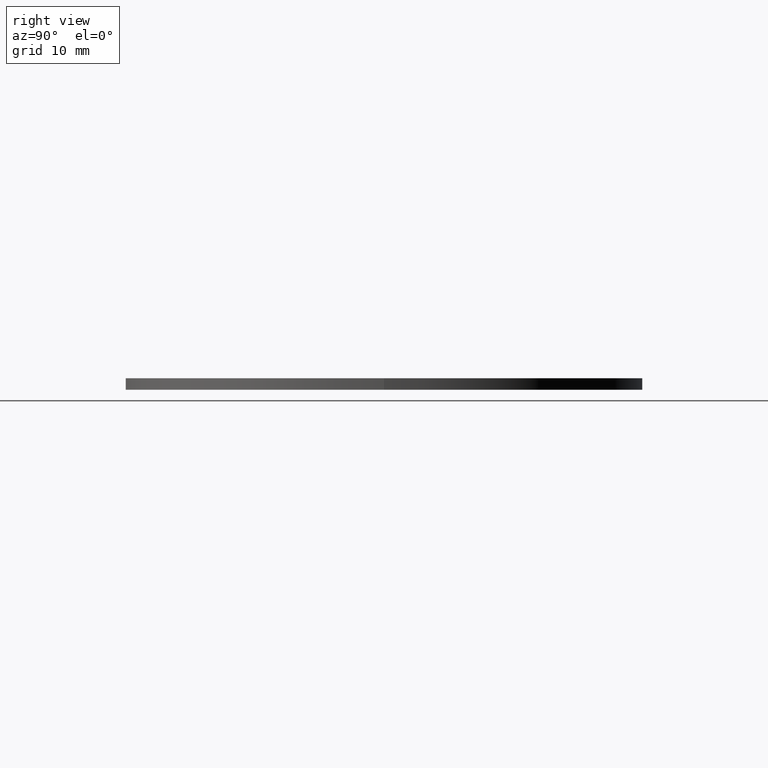
[diagram: clean part render]
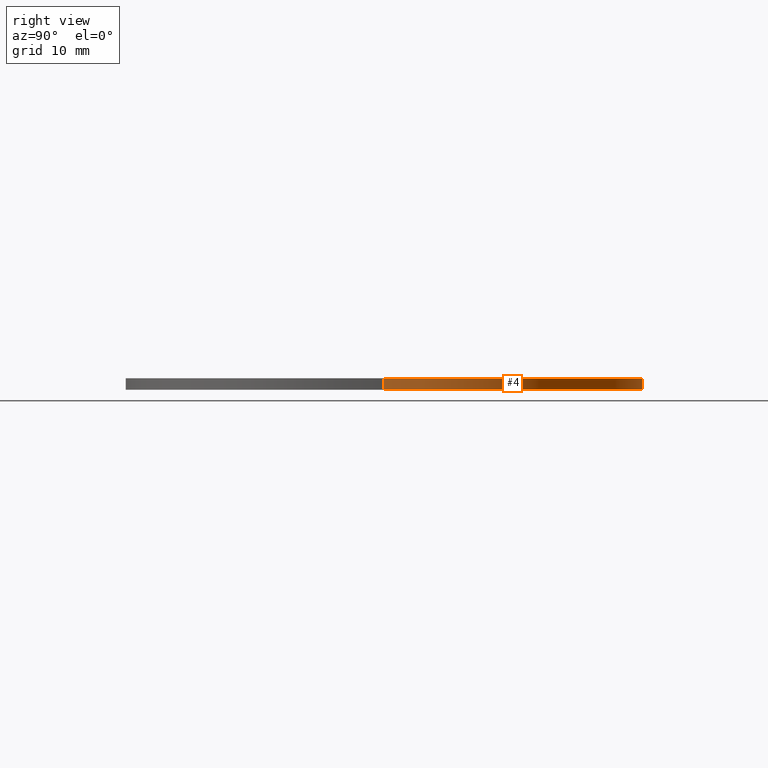
[diagram: same view with one face highlighted and labeled with its STEP entity id]
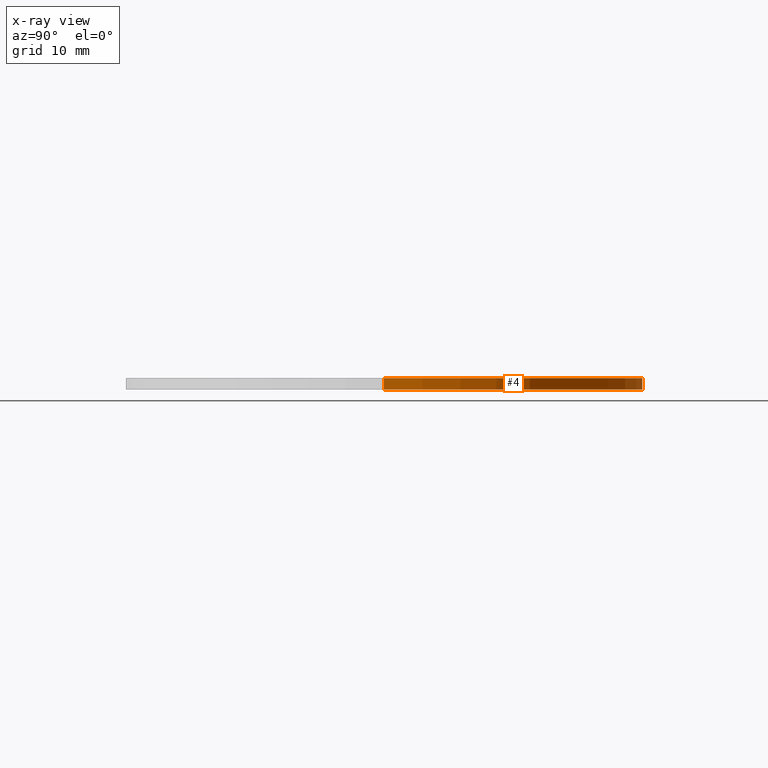
[diagram: x-ray of the same camera — body ghosted, the highlighted face saturated]
A machine part, right view. The second image highlights one B-rep face of the part: STEP entity #4.
The next image is the same camera in x-ray: the body ghosted, the highlighted face saturated — about 0% of this face is hidden behind the body in this view.
In plain terms, the highlighted cylindrical surface (partial cylindrical patch) has radius 25 mm, axis along (-0, -0, -1).
Its self-contained STEP definition (entity closure, byte-faithful):
#4 = ADVANCED_FACE ( 'NONE', ( #15 ), #6, .T. ) ;
#6 = CYLINDRICAL_SURFACE ( 'NONE', #142, 25.00000000000000000 ) ;
#11 = VERTEX_POINT ( 'NONE', #240 ) ;
#14 = LINE ( 'NONE', #158, #18 ) ;
#15 = FACE_OUTER_BOUND ( 'NONE', #99, .T. ) ;
#18 = VECTOR ( 'NONE', #138, 1000.000000000000000 ) ;
#19 = EDGE_CURVE ( 'NONE', #111, #214, #25, .T. ) ;
#20 = DIRECTION ( 'NONE',  ( 0.0000000000000000000, 0.0000000000000000000, 1.000000000000000000 ) ) ;
#23 = CARTESIAN_POINT ( 'NONE',  ( -25.00000000000000000, 0.0000000000000000000, 1.100000000000000100 ) ) ;
#25 = LINE ( 'NONE', #23, #58 ) ;
#40 = ORIENTED_EDGE ( 'NONE', *, *, #19, .F. ) ;
#41 = CARTESIAN_POINT ( 'NONE',  ( -25.00000000000000000, 0.0000000000000000000, 0.0000000000000000000 ) ) ;
#58 = VECTOR ( 'NONE', #79, 1000.000000000000000 ) ;
#62 = CARTESIAN_POINT ( 'NONE',  ( 0.0000000000000000000, 0.0000000000000000000, 1.100000000000000100 ) ) ;
#79 = DIRECTION ( 'NONE',  ( -0.0000000000000000000, -0.0000000000000000000, -1.000000000000000000 ) ) ;
#80 = EDGE_CURVE ( 'NONE', #11, #111, #211, .T. ) ;
#84 = CARTESIAN_POINT ( 'NONE',  ( 0.0000000000000000000, 0.0000000000000000000, 0.0000000000000000000 ) ) ;
#99 = EDGE_LOOP ( 'NONE', ( #234, #225, #198, #40 ) ) ;
#111 = VERTEX_POINT ( 'NONE', #162 ) ;
#115 = DIRECTION ( 'NONE',  ( -0.0000000000000000000, -0.0000000000000000000, -1.000000000000000000 ) ) ;
#124 = VERTEX_POINT ( 'NONE', #243 ) ;
#128 = EDGE_CURVE ( 'NONE', #11, #124, #14, .T. ) ;
#137 = CIRCLE ( 'NONE', #155, 25.00000000000000000 ) ;
#138 = DIRECTION ( 'NONE',  ( -0.0000000000000000000, -0.0000000000000000000, -1.000000000000000000 ) ) ;
#142 = AXIS2_PLACEMENT_3D ( 'NONE', #62, #115, #177 ) ;
#150 = EDGE_CURVE ( 'NONE', #124, #214, #137, .T. ) ;
#155 = AXIS2_PLACEMENT_3D ( 'NONE', #84, #165, #208 ) ;
#158 = CARTESIAN_POINT ( 'NONE',  ( 25.00000000000000000, 3.061616997868383000E-015, 1.100000000000000100 ) ) ;
#162 = CARTESIAN_POINT ( 'NONE',  ( -25.00000000000000000, 0.0000000000000000000, 1.100000000000000100 ) ) ;
#165 = DIRECTION ( 'NONE',  ( 0.0000000000000000000, 0.0000000000000000000, 1.000000000000000000 ) ) ;
#174 = AXIS2_PLACEMENT_3D ( 'NONE', #202, #20, #176 ) ;
#176 = DIRECTION ( 'NONE',  ( 1.000000000000000000, 0.0000000000000000000, 0.0000000000000000000 ) ) ;
#177 = DIRECTION ( 'NONE',  ( -1.000000000000000000, 0.0000000000000000000, 0.0000000000000000000 ) ) ;
#198 = ORIENTED_EDGE ( 'NONE', *, *, #150, .T. ) ;
#202 = CARTESIAN_POINT ( 'NONE',  ( 0.0000000000000000000, 0.0000000000000000000, 1.100000000000000100 ) ) ;
#208 = DIRECTION ( 'NONE',  ( 1.000000000000000000, 0.0000000000000000000, 0.0000000000000000000 ) ) ;
#211 = CIRCLE ( 'NONE', #174, 25.00000000000000000 ) ;
#214 = VERTEX_POINT ( 'NONE', #41 ) ;
#225 = ORIENTED_EDGE ( 'NONE', *, *, #128, .T. ) ;
#234 = ORIENTED_EDGE ( 'NONE', *, *, #80, .F. ) ;
#240 = CARTESIAN_POINT ( 'NONE',  ( 25.00000000000000000, 3.061616997868383000E-015, 1.100000000000000100 ) ) ;
#243 = CARTESIAN_POINT ( 'NONE',  ( 25.00000000000000000, 3.061616997868383000E-015, 0.0000000000000000000 ) ) ;